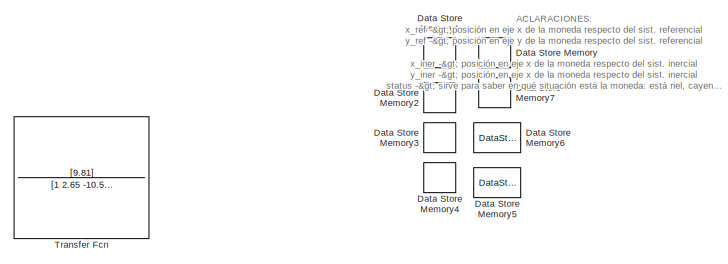
[diagram: root canvas - part 1/3, top center region]
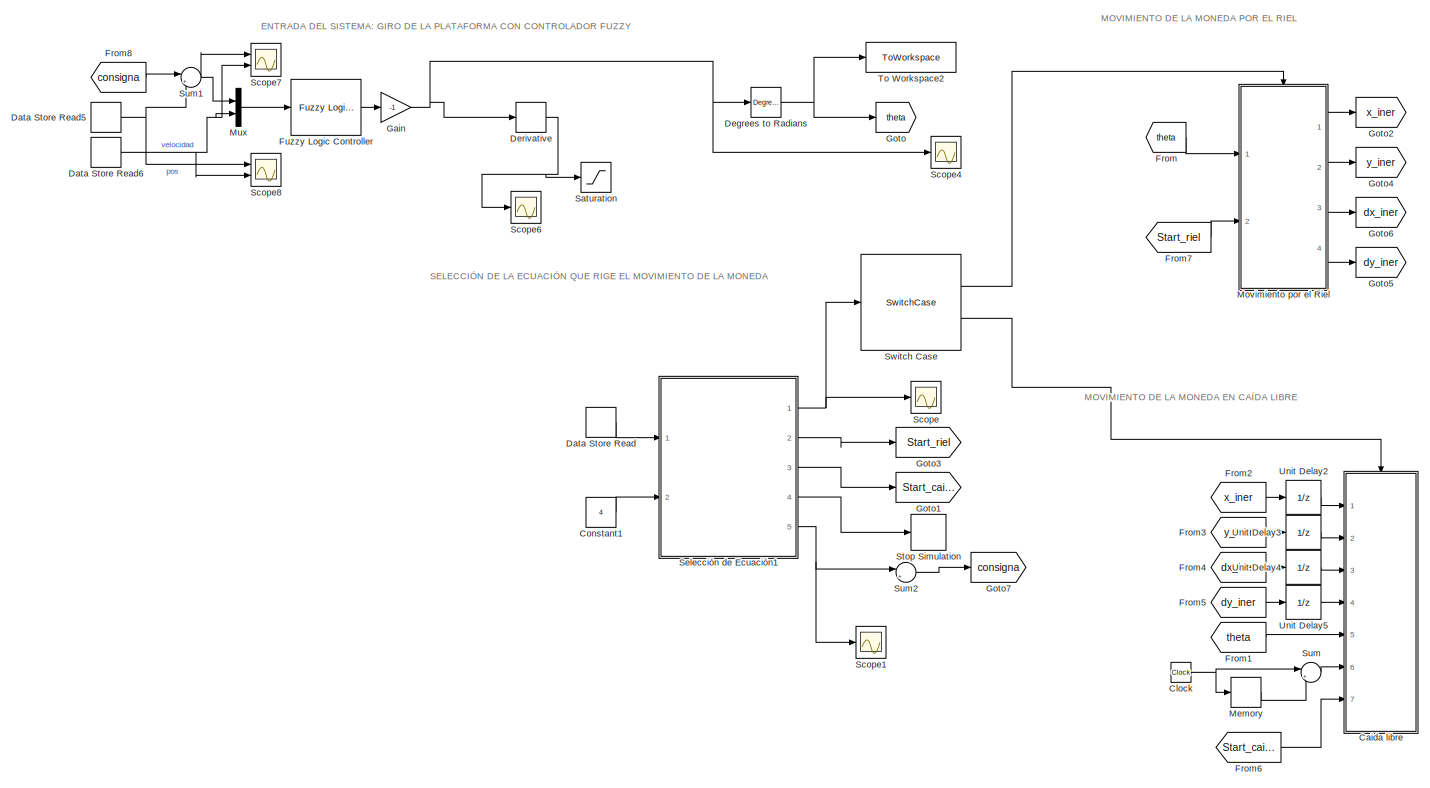
[diagram: root canvas - part 2/3, most of the canvas]
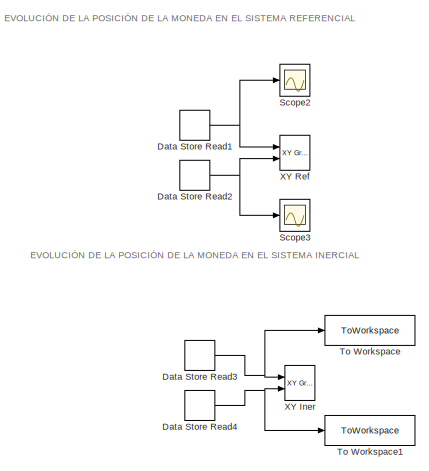
[diagram: root canvas - part 3/3, middle right region]
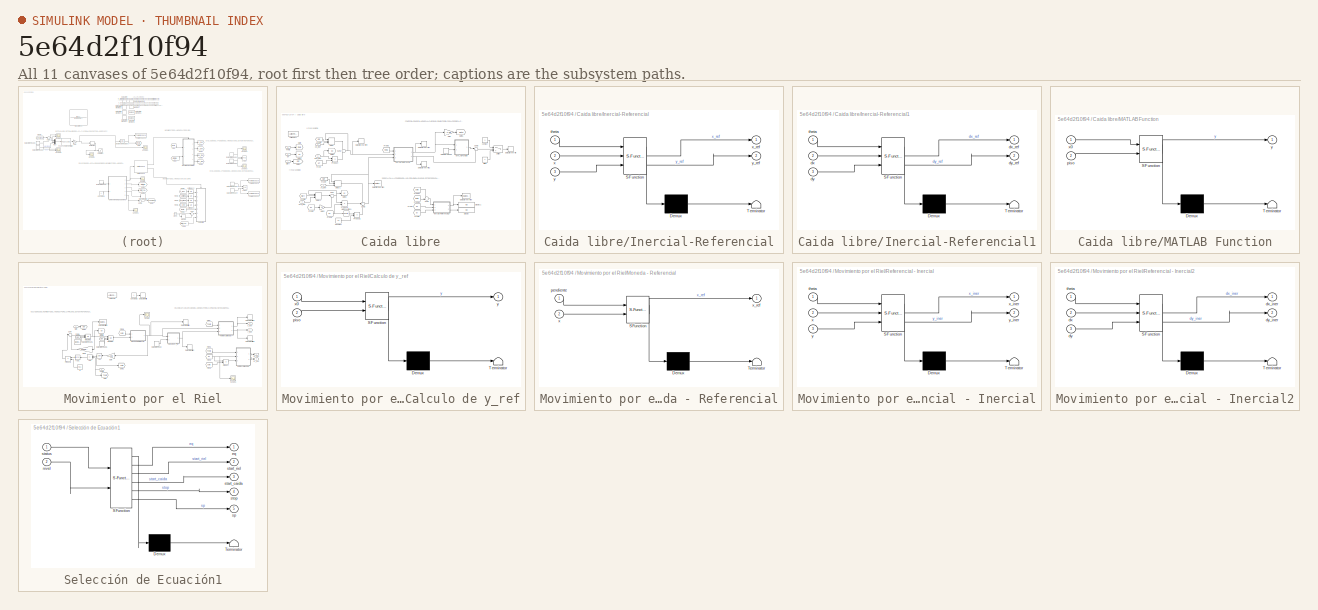
[diagram: thumbnail index - all 11 canvases of the model, root first then tree order]
MODEL slx_5e64d2f10f94
KIND model
CONFIG AbsTol = auto
CONFIG EnableMultiTasking = off
CONFIG FixedStep = 0.009
CONFIG MaxStep = auto
CONFIG MinStep = auto
CONFIG RelTol = 1e-3
CONFIG SampleTimeConstraint = Unconstrained
CONFIG SolverName = FixedStepAuto
CONFIG StartTime = 0.0
CONFIG StopTime = 20
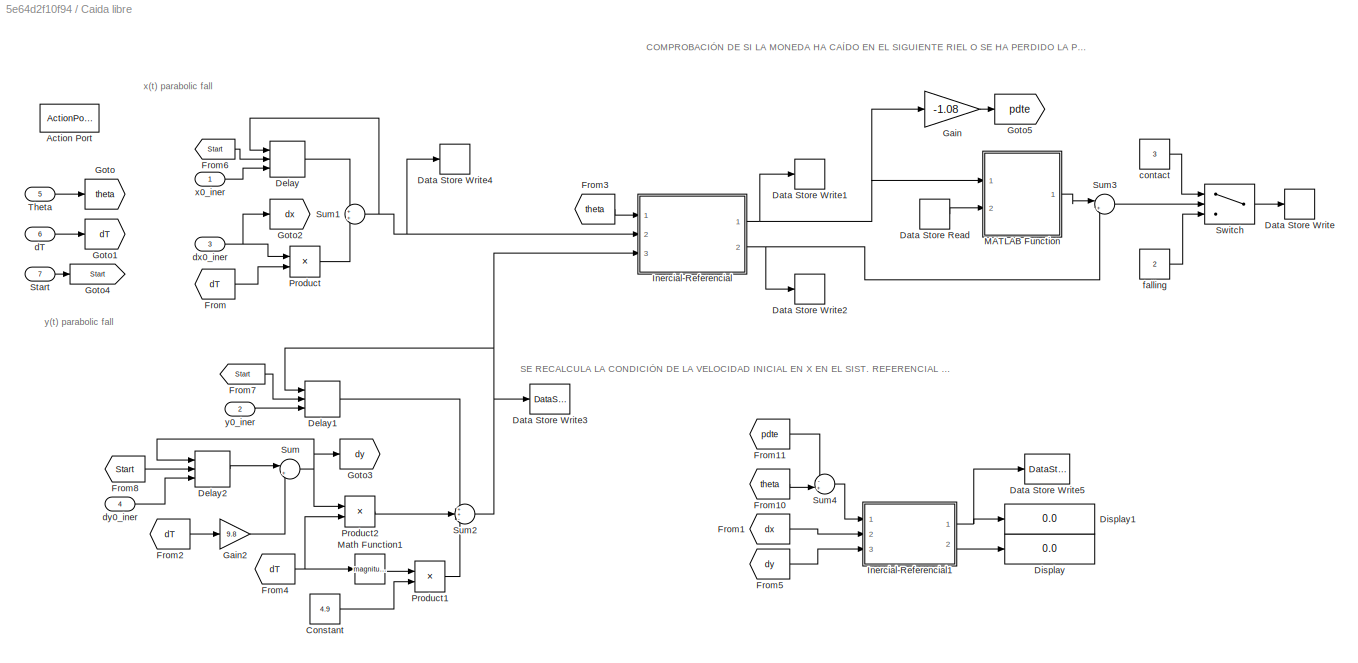
BLOCK [SubSystem] Caida libre
  Ports = [7, 0, 0, 0, 0, 0, 0, 1]
  RequestExecContextInheritance = off
  TreatAsAtomicUnit = on
BLOCK [ActionPort] Caida libre/Action Port
  ActionPortLabel = case [ 2 ]:
BLOCK [Constant] Caida libre/Constant
  Value = 4.9
BLOCK [DataStoreRead] Caida libre/Data Store Read
  DataStoreName = Piso
  Ports = [0, 1]
BLOCK [DataStoreWrite] Caida libre/Data Store Write
  DataStoreName = status
  Ports = [1]
BLOCK [DataStoreWrite] Caida libre/Data Store Write1
  DataStoreName = x_ref
  Ports = [1]
BLOCK [DataStoreWrite] Caida libre/Data Store Write2
  DataStoreName = y_ref
  Ports = [1]
BLOCK [DataStoreWrite] Caida libre/Data Store Write3
  DataStoreName = y_iner
  Ports = [1]
BLOCK [DataStoreWrite] Caida libre/Data Store Write4
  DataStoreName = x_iner
  Ports = [1]
BLOCK [DataStoreWrite] Caida libre/Data Store Write5
  DataStoreName = dx_mon
  Ports = [1]
BLOCK [Delay] Caida libre/Delay
  DelayLength = 1
  ExternalReset = Rising
  InitialConditionSource = Input port
  InputPortMap = u0,r5,p4
  Ports = [3, 1]
BLOCK [Delay] Caida libre/Delay1
  DelayLength = 1
  ExternalReset = Rising
  InitialConditionSource = Input port
  InputPortMap = u0,r5,p4
  Ports = [3, 1]
BLOCK [Delay] Caida libre/Delay2
  DelayLength = 1
  ExternalReset = Rising
  InitialConditionSource = Input port
  InputPortMap = u0,r5,p4
  Ports = [3, 1]
BLOCK [Display] Caida libre/Display
  Decimation = 1
  Ports = [1]
BLOCK [Display] Caida libre/Display1
  Decimation = 1
  Ports = [1]
BLOCK [From] Caida libre/From
  GotoTag = dT
BLOCK [From] Caida libre/From1
  GotoTag = dx
BLOCK [From] Caida libre/From10
  GotoTag = theta
BLOCK [From] Caida libre/From11
  GotoTag = pdte
BLOCK [From] Caida libre/From2
  GotoTag = dT
BLOCK [From] Caida libre/From3
  GotoTag = theta
BLOCK [From] Caida libre/From4
  GotoTag = dT
BLOCK [From] Caida libre/From5
  GotoTag = dy
BLOCK [From] Caida libre/From6
  GotoTag = Start
BLOCK [From] Caida libre/From7
  GotoTag = Start
BLOCK [From] Caida libre/From8
  GotoTag = Start
BLOCK [Gain] Caida libre/Gain
  Gain = -1.08
BLOCK [Gain] Caida libre/Gain2
  Gain = 9.8
BLOCK [Goto] Caida libre/Goto
  GotoTag = theta
BLOCK [Goto] Caida libre/Goto1
  GotoTag = dT
BLOCK [Goto] Caida libre/Goto2
  GotoTag = dx
BLOCK [Goto] Caida libre/Goto3
  GotoTag = dy
BLOCK [Goto] Caida libre/Goto4
  GotoTag = Start
BLOCK [Goto] Caida libre/Goto5
  GotoTag = pdte
BLOCK [SubSystem] Caida libre/Inercial-Referencial
  ErrorFcn = Stateflow.Translate.translate
  PermitHierarchicalResolution = ExplicitOnly
  Ports = [3, 2]
  RequestExecContextInheritance = off
  SFBlockType = MATLAB Function
  TreatAsAtomicUnit = on
BLOCK [Demux] Caida libre/Inercial-Referencial/ Demux 
  Outputs = 1
  Ports = [1, 1]
BLOCK [S-Function] Caida libre/Inercial-Referencial/ SFunction 
  EnableBusSupport = on
  FunctionName = sf_sfun
  PortCounts = [3 3]
  Ports = [3, 3]
  SFcnIsStateOwnerBlock = off
  SFunctionDeploymentMode = off
  Tag = Stateflow S-Function 3
BLOCK [Terminator] Caida libre/Inercial-Referencial/ Terminator 
BLOCK [Inport] Caida libre/Inercial-Referencial/theta
BLOCK [Inport] Caida libre/Inercial-Referencial/x
  Port = 2
BLOCK [Outport] Caida libre/Inercial-Referencial/x_ref
BLOCK [Inport] Caida libre/Inercial-Referencial/y
  Port = 3
BLOCK [Outport] Caida libre/Inercial-Referencial/y_ref
  Port = 2
BLOCK [SubSystem] Caida libre/Inercial-Referencial1
  ErrorFcn = Stateflow.Translate.translate
  PermitHierarchicalResolution = ExplicitOnly
  Ports = [3, 2]
  RequestExecContextInheritance = off
  SFBlockType = MATLAB Function
  TreatAsAtomicUnit = on
BLOCK [Demux] Caida libre/Inercial-Referencial1/ Demux 
  Outputs = 1
  Ports = [1, 1]
BLOCK [S-Function] Caida libre/Inercial-Referencial1/ SFunction 
  EnableBusSupport = on
  FunctionName = sf_sfun
  PortCounts = [3 3]
  Ports = [3, 3]
  SFcnIsStateOwnerBlock = off
  SFunctionDeploymentMode = off
  Tag = Stateflow S-Function 5
BLOCK [Terminator] Caida libre/Inercial-Referencial1/ Terminator 
BLOCK [Inport] Caida libre/Inercial-Referencial1/dx
  Port = 2
BLOCK [Outport] Caida libre/Inercial-Referencial1/dx_ref
BLOCK [Inport] Caida libre/Inercial-Referencial1/dy
  Port = 3
BLOCK [Outport] Caida libre/Inercial-Referencial1/dy_ref
  Port = 2
BLOCK [Inport] Caida libre/Inercial-Referencial1/theta
BLOCK [SubSystem] Caida libre/MATLAB Function
  ErrorFcn = Stateflow.Translate.translate
  PermitHierarchicalResolution = ExplicitOnly
  Ports = [2, 1]
  RequestExecContextInheritance = off
  SFBlockType = MATLAB Function
  TreatAsAtomicUnit = on
BLOCK [Demux] Caida libre/MATLAB Function/ Demux 
  Outputs = 1
  Ports = [1, 1]
BLOCK [S-Function] Caida libre/MATLAB Function/ SFunction 
  EnableBusSupport = on
  FunctionName = sf_sfun
  PortCounts = [2 2]
  Ports = [2, 2]
  SFcnIsStateOwnerBlock = off
  SFunctionDeploymentMode = off
  Tag = Stateflow S-Function 7
BLOCK [Terminator] Caida libre/MATLAB Function/ Terminator 
BLOCK [Inport] Caida libre/MATLAB Function/piso
  Port = 2
BLOCK [Inport] Caida libre/MATLAB Function/x0
BLOCK [Outport] Caida libre/MATLAB Function/y
BLOCK [Math] Caida libre/Math Function1
  Operator = magnitude^2
  Ports = [1, 1]
BLOCK [Product] Caida libre/Product
  Ports = [2, 1]
BLOCK [Product] Caida libre/Product1
  Ports = [2, 1]
BLOCK [Product] Caida libre/Product2
  Ports = [2, 1]
BLOCK [Inport] Caida libre/Start
  Port = 7
BLOCK [Sum] Caida libre/Sum
  Inputs = |+-
  Ports = [2, 1]
BLOCK [Sum] Caida libre/Sum1
  Ports = [2, 1]
BLOCK [Sum] Caida libre/Sum2
  Inputs = ++-
  Ports = [3, 1]
BLOCK [Sum] Caida libre/Sum3
  Inputs = |+-
  Ports = [2, 1]
BLOCK [Sum] Caida libre/Sum4
  Inputs = -+|
  Ports = [2, 1]
BLOCK [Switch] Caida libre/Switch
  Criteria = u2 > Threshold
  InputSameDT = off
  SaturateOnIntegerOverflow = off
BLOCK [Inport] Caida libre/Theta
  Port = 5
BLOCK [Constant] Caida libre/contact
  Value = 3
BLOCK [Inport] Caida libre/dT
  Port = 6
BLOCK [Inport] Caida libre/dx0_iner
  Port = 3
BLOCK [Inport] Caida libre/dy0_iner
  Port = 4
BLOCK [Constant] Caida libre/falling
  Value = 2
BLOCK [Inport] Caida libre/x0_iner
BLOCK [Inport] Caida libre/y0_iner
  Port = 2
BLOCK [Clock] Clock
BLOCK [Constant] Constant1
  Value = 4
BLOCK [DataStoreMemory] Data Store Memory
  DataStoreName = status
  OutDataTypeStr = double
  ReadBeforeWriteMsg = warning
  ShowAdditionalParam = off
  SignalType = real
  WriteAfterReadMsg = warning
  WriteAfterWriteMsg = warning
BLOCK [DataStoreMemory] Data Store Memory1
  DataStoreName = x_ref
  InitialValue = -0.11
  OutDataTypeStr = double
  ReadBeforeWriteMsg = warning
  ShowAdditionalParam = off
  SignalType = real
  WriteAfterReadMsg = warning
  WriteAfterWriteMsg = warning
BLOCK [DataStoreMemory] Data Store Memory2
  DataStoreName = y_ref
  OutDataTypeStr = double
  ReadBeforeWriteMsg = warning
  ShowAdditionalParam = off
  SignalType = real
  WriteAfterReadMsg = warning
  WriteAfterWriteMsg = warning
BLOCK [DataStoreMemory] Data Store Memory3
  DataStoreName = x_iner
  InitialValue = -0.11
  OutDataTypeStr = double
  ReadBeforeWriteMsg = warning
  ShowAdditionalParam = off
  SignalType = real
  WriteAfterReadMsg = warning
  WriteAfterWriteMsg = warning
BLOCK [DataStoreMemory] Data Store Memory4
  DataStoreName = y_iner
  OutDataTypeStr = double
  ReadBeforeWriteMsg = warning
  ShowAdditionalParam = off
  SignalType = real
  WriteAfterReadMsg = warning
  WriteAfterWriteMsg = warning
BLOCK [DataStoreMemory] Data Store Memory5
  DataStoreName = dx_mon
  OutDataTypeStr = double
  ReadBeforeWriteMsg = warning
  ShowAdditionalParam = off
  SignalType = real
  WriteAfterReadMsg = warning
  WriteAfterWriteMsg = warning
BLOCK [DataStoreMemory] Data Store Memory6
  DataStoreName = dy_ref
  OutDataTypeStr = double
  ReadBeforeWriteMsg = warning
  ShowAdditionalParam = off
  SignalType = real
  WriteAfterReadMsg = warning
  WriteAfterWriteMsg = warning
BLOCK [DataStoreMemory] Data Store Memory7
  DataStoreName = Piso
  InitialValue = 1
  OutDataTypeStr = double
  ReadBeforeWriteMsg = warning
  ShowAdditionalParam = off
  SignalType = real
  WriteAfterReadMsg = warning
  WriteAfterWriteMsg = warning
BLOCK [DataStoreRead] Data Store Read
  DataStoreName = status
  Ports = [0, 1]
BLOCK [DataStoreRead] Data Store Read1
  DataStoreName = x_ref
  Ports = [0, 1]
BLOCK [DataStoreRead] Data Store Read2
  DataStoreName = y_ref
  Ports = [0, 1]
BLOCK [DataStoreRead] Data Store Read3
  DataStoreName = x_iner
  Ports = [0, 1]
BLOCK [DataStoreRead] Data Store Read4
  DataStoreName = y_iner
  Ports = [0, 1]
BLOCK [DataStoreRead] Data Store Read5
  DataStoreName = x_ref
  Ports = [0, 1]
BLOCK [DataStoreRead] Data Store Read6
  DataStoreName = dx_mon
  Ports = [0, 1]
BLOCK [Reference] Degrees to Radians  REF=simulink_extras/Transformations/Degrees to
Radians
  Ports = [1, 1]
  SourceBlock = simulink_extras/Transformations/Degrees to\nRadians
  SourceProductBaseCode = SL
  SourceType = DegreesToRadians
BLOCK [Derivative] Derivative
BLOCK [From] From
  GotoTag = theta
BLOCK [From] From1
  GotoTag = theta
BLOCK [From] From2
  GotoTag = x_iner
BLOCK [From] From3
  GotoTag = y_iner
BLOCK [From] From4
  GotoTag = dx_iner
BLOCK [From] From5
  GotoTag = dy_iner
BLOCK [From] From6
  GotoTag = Start_caida
BLOCK [From] From7
  GotoTag = Start_riel
BLOCK [From] From8
  GotoTag = consigna
BLOCK [Reference] Fuzzy Logic Controller  REF=fuzblock/Fuzzy Logic   (lib defined in mdl_858b3b3e7478)
Controller
  Ports = [1, 1]
  SourceBlock = fuzblock/Fuzzy Logic \nController
  SourceProductBaseCode = FL
  SourceType = Fuzzy Inference System
BLOCK [Gain] Gain
  Gain = -1
BLOCK [Goto] Goto
  GotoTag = theta
BLOCK [Goto] Goto1
  GotoTag = Start_caida
BLOCK [Goto] Goto2
  GotoTag = x_iner
BLOCK [Goto] Goto3
  GotoTag = Start_riel
BLOCK [Goto] Goto4
  GotoTag = y_iner
BLOCK [Goto] Goto5
  GotoTag = dy_iner
BLOCK [Goto] Goto6
  GotoTag = dx_iner
BLOCK [Goto] Goto7
  GotoTag = consigna
BLOCK [Memory] Memory
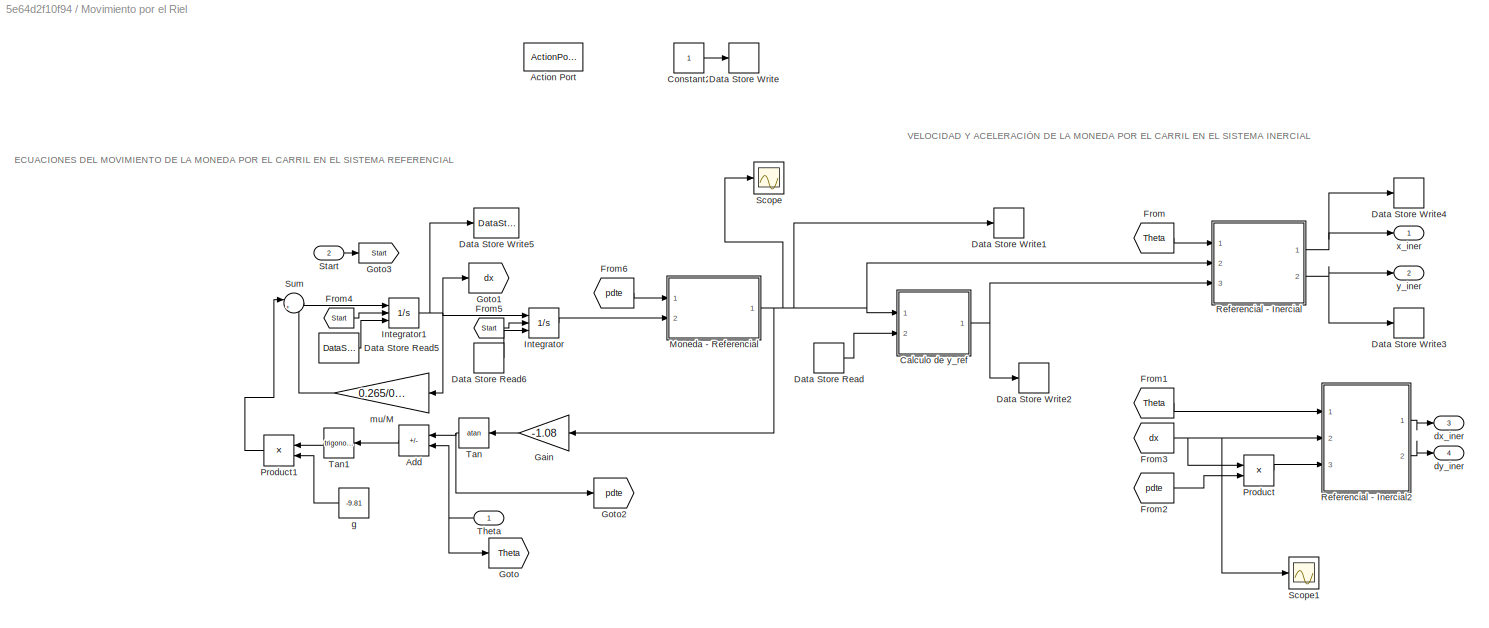
BLOCK [SubSystem] Movimiento por el Riel
  Ports = [2, 4, 0, 0, 0, 0, 0, 1]
  RequestExecContextInheritance = off
  TreatAsAtomicUnit = on
BLOCK [ActionPort] Movimiento por el Riel/Action Port
  ActionPortLabel = case [ 1 ]:
BLOCK [Sum] Movimiento por el Riel/Add
  IconShape = rectangular
  Inputs = +-
  NameLocation = top
  Ports = [2, 1]
BLOCK [SubSystem] Movimiento por el Riel/Calculo de y_ref
  ErrorFcn = Stateflow.Translate.translate
  PermitHierarchicalResolution = ExplicitOnly
  Ports = [2, 1]
  RequestExecContextInheritance = off
  SFBlockType = MATLAB Function
  TreatAsAtomicUnit = on
BLOCK [Demux] Movimiento por el Riel/Calculo de y_ref/ Demux 
  Outputs = 1
  Ports = [1, 1]
BLOCK [S-Function] Movimiento por el Riel/Calculo de y_ref/ SFunction 
  EnableBusSupport = on
  FunctionName = sf_sfun
  PortCounts = [2 2]
  Ports = [2, 2]
  SFcnIsStateOwnerBlock = off
  SFunctionDeploymentMode = off
  Tag = Stateflow S-Function 2
BLOCK [Terminator] Movimiento por el Riel/Calculo de y_ref/ Terminator 
BLOCK [Inport] Movimiento por el Riel/Calculo de y_ref/piso
  Port = 2
BLOCK [Inport] Movimiento por el Riel/Calculo de y_ref/x0
BLOCK [Outport] Movimiento por el Riel/Calculo de y_ref/y
BLOCK [Constant] Movimiento por el Riel/Constant2
BLOCK [DataStoreRead] Movimiento por el Riel/Data Store Read
  DataStoreName = Piso
  Ports = [0, 1]
BLOCK [DataStoreRead] Movimiento por el Riel/Data Store Read5
  DataStoreName = dx_mon
  Ports = [0, 1]
BLOCK [DataStoreRead] Movimiento por el Riel/Data Store Read6
  DataStoreName = x_ref
  Ports = [0, 1]
BLOCK [DataStoreWrite] Movimiento por el Riel/Data Store Write
  DataStoreName = status
  Ports = [1]
BLOCK [DataStoreWrite] Movimiento por el Riel/Data Store Write1
  DataStoreName = x_ref
  Ports = [1]
BLOCK [DataStoreWrite] Movimiento por el Riel/Data Store Write2
  DataStoreName = y_ref
  Ports = [1]
BLOCK [DataStoreWrite] Movimiento por el Riel/Data Store Write3
  DataStoreName = y_iner
  Ports = [1]
BLOCK [DataStoreWrite] Movimiento por el Riel/Data Store Write4
  DataStoreName = x_iner
  Ports = [1]
BLOCK [DataStoreWrite] Movimiento por el Riel/Data Store Write5
  DataStoreName = dx_mon
  Ports = [1]
BLOCK [From] Movimiento por el Riel/From
  GotoTag = Theta
BLOCK [From] Movimiento por el Riel/From1
  GotoTag = Theta
BLOCK [From] Movimiento por el Riel/From2
  GotoTag = pdte
BLOCK [From] Movimiento por el Riel/From3
  GotoTag = dx
BLOCK [From] Movimiento por el Riel/From4
  GotoTag = Start
BLOCK [From] Movimiento por el Riel/From5
  GotoTag = Start
BLOCK [From] Movimiento por el Riel/From6
  GotoTag = pdte
BLOCK [Gain] Movimiento por el Riel/Gain
  Gain = -1.08
  NameLocation = top
BLOCK [Goto] Movimiento por el Riel/Goto
  GotoTag = Theta
BLOCK [Goto] Movimiento por el Riel/Goto1
  GotoTag = dx
BLOCK [Goto] Movimiento por el Riel/Goto2
  GotoTag = pdte
BLOCK [Goto] Movimiento por el Riel/Goto3
  GotoTag = Start
BLOCK [Integrator] Movimiento por el Riel/Integrator
  ExternalReset = rising
  InitialConditionSource = external
  Ports = [3, 1]
BLOCK [Integrator] Movimiento por el Riel/Integrator1
  ExternalReset = rising
  InitialConditionSource = external
  Ports = [3, 1]
BLOCK [SubSystem] Movimiento por el Riel/Moneda - Referencial
  ErrorFcn = Stateflow.Translate.translate
  PermitHierarchicalResolution = ExplicitOnly
  Ports = [2, 1]
  RequestExecContextInheritance = off
  SFBlockType = MATLAB Function
  TreatAsAtomicUnit = on
BLOCK [Demux] Movimiento por el Riel/Moneda - Referencial/ Demux 
  Outputs = 1
  Ports = [1, 1]
BLOCK [S-Function] Movimiento por el Riel/Moneda - Referencial/ SFunction 
  EnableBusSupport = on
  FunctionName = sf_sfun
  PortCounts = [2 2]
  Ports = [2, 2]
  SFcnIsStateOwnerBlock = off
  SFunctionDeploymentMode = off
  Tag = Stateflow S-Function 1
BLOCK [Terminator] Movimiento por el Riel/Moneda - Referencial/ Terminator 
BLOCK [Inport] Movimiento por el Riel/Moneda - Referencial/pendiente
BLOCK [Inport] Movimiento por el Riel/Moneda - Referencial/x
  Port = 2
BLOCK [Outport] Movimiento por el Riel/Moneda - Referencial/x_ref
BLOCK [Product] Movimiento por el Riel/Product
  Ports = [2, 1]
BLOCK [Product] Movimiento por el Riel/Product1
  NameLocation = top
  Ports = [2, 1]
BLOCK [SubSystem] Movimiento por el Riel/Referencial - Inercial
  ErrorFcn = Stateflow.Translate.translate
  PermitHierarchicalResolution = ExplicitOnly
  Ports = [3, 2]
  RequestExecContextInheritance = off
  SFBlockType = MATLAB Function
  TreatAsAtomicUnit = on
BLOCK [Demux] Movimiento por el Riel/Referencial - Inercial/ Demux 
  Outputs = 1
  Ports = [1, 1]
BLOCK [S-Function] Movimiento por el Riel/Referencial - Inercial/ SFunction 
  EnableBusSupport = on
  FunctionName = sf_sfun
  PortCounts = [3 3]
  Ports = [3, 3]
  SFcnIsStateOwnerBlock = off
  SFunctionDeploymentMode = off
  Tag = Stateflow S-Function 8
BLOCK [Terminator] Movimiento por el Riel/Referencial - Inercial/ Terminator 
BLOCK [Inport] Movimiento por el Riel/Referencial - Inercial/theta
BLOCK [Inport] Movimiento por el Riel/Referencial - Inercial/x
  Port = 2
BLOCK [Outport] Movimiento por el Riel/Referencial - Inercial/x_iner
BLOCK [Inport] Movimiento por el Riel/Referencial - Inercial/y
  Port = 3
BLOCK [Outport] Movimiento por el Riel/Referencial - Inercial/y_iner
  Port = 2
BLOCK [SubSystem] Movimiento por el Riel/Referencial - Inercial2
  ErrorFcn = Stateflow.Translate.translate
  PermitHierarchicalResolution = ExplicitOnly
  Ports = [3, 2]
  RequestExecContextInheritance = off
  SFBlockType = MATLAB Function
  TreatAsAtomicUnit = on
BLOCK [Demux] Movimiento por el Riel/Referencial - Inercial2/ Demux 
  Outputs = 1
  Ports = [1, 1]
BLOCK [S-Function] Movimiento por el Riel/Referencial - Inercial2/ SFunction 
  EnableBusSupport = on
  FunctionName = sf_sfun
  PortCounts = [3 3]
  Ports = [3, 3]
  SFcnIsStateOwnerBlock = off
  SFunctionDeploymentMode = off
  Tag = Stateflow S-Function 9
BLOCK [Terminator] Movimiento por el Riel/Referencial - Inercial2/ Terminator 
BLOCK [Inport] Movimiento por el Riel/Referencial - Inercial2/dx
  Port = 2
BLOCK [Outport] Movimiento por el Riel/Referencial - Inercial2/dx_iner
BLOCK [Inport] Movimiento por el Riel/Referencial - Inercial2/dy
  Port = 3
BLOCK [Outport] Movimiento por el Riel/Referencial - Inercial2/dy_iner
  Port = 2
BLOCK [Inport] Movimiento por el Riel/Referencial - Inercial2/theta
BLOCK [Scope] Movimiento por el Riel/Scope
  Floating = off
  NumInputPorts = 1
  Ports = [1]
  ScopeSpecificationString = Simulink.scopes.TimeScopeBlockCfg('CurrentConfiguration', extmgr.ConfigurationSet(extmgr.Configuration('Core','General UI',true),extmgr.Configuration('Core','Source UI',true),extmgr.Configuration('Sources','WiredSimulink',true,'DataLoggingVariableName','ScopeData1'),extmgr.Configuration('Visuals','Time Domain',true),extmgr.Configuration('Tools','Plot Navigation',true),extmgr.Configuration('Tools',...<+40ch>
BLOCK [Scope] Movimiento por el Riel/Scope1
  Floating = off
  NumInputPorts = 1
  Ports = [1]
  ScopeSpecificationString = Simulink.scopes.TimeScopeBlockCfg('CurrentConfiguration', extmgr.ConfigurationSet(extmgr.Configuration('Core','General UI',true),extmgr.Configuration('Core','Source UI',true),extmgr.Configuration('Sources','WiredSimulink',true,'DataLoggingVariableName','ScopeData1'),extmgr.Configuration('Visuals','Time Domain',true,'SerializedDisplays',{struct('MinYLimReal','-0.40852','MaxYLimReal','0.41258','YLab...<+1401ch>
BLOCK [Inport] Movimiento por el Riel/Start
  Port = 2
BLOCK [Sum] Movimiento por el Riel/Sum
  Inputs = |+-
  Ports = [2, 1]
BLOCK [Trigonometry] Movimiento por el Riel/Tan
  NameLocation = top
  Operator = atan
  Ports = [1, 1]
BLOCK [Trigonometry] Movimiento por el Riel/Tan1
  NameLocation = top
  Ports = [1, 1]
BLOCK [Inport] Movimiento por el Riel/Theta
  NameLocation = top
BLOCK [Outport] Movimiento por el Riel/dx_iner
  Port = 3
BLOCK [Outport] Movimiento por el Riel/dy_iner
  Port = 4
BLOCK [Constant] Movimiento por el Riel/g
  NameLocation = top
  Value = -9.81
BLOCK [Gain] Movimiento por el Riel/mu//M
  Gain = 0.265/0.1
BLOCK [Outport] Movimiento por el Riel/x_iner
BLOCK [Outport] Movimiento por el Riel/y_iner
  Port = 2
BLOCK [Mux] Mux
  DisplayOption = bar
  Inputs = 2
  Ports = [2, 1]
BLOCK [Saturate] Saturation
  LowerLimit = -300
  UpperLimit = 300
BLOCK [Scope] Scope
  Floating = off
  NumInputPorts = 1
  Ports = [1]
  ScopeSpecificationString = Simulink.scopes.TimeScopeBlockCfg('CurrentConfiguration', extmgr.ConfigurationSet(extmgr.Configuration('Core','General UI',true),extmgr.Configuration('Core','Source UI',true),extmgr.Configuration('Sources','WiredSimulink',true,'DataLoggingVariableName','ScopeData1'),extmgr.Configuration('Visuals','Time Domain',true,'SerializedDisplays',{struct('MinYLimReal','0.875','MaxYLimReal','2.125','YLabelRea...<+1463ch>
BLOCK [Scope] Scope1
  Floating = off
  NumInputPorts = 1
  Ports = [1]
  ScopeSpecificationString = Simulink.scopes.TimeScopeBlockCfg('CurrentConfiguration', extmgr.ConfigurationSet(extmgr.Configuration('Core','General UI',true),extmgr.Configuration('Core','Source UI',true),extmgr.Configuration('Sources','WiredSimulink',true,'DataLoggingVariableName','ScopeData1'),extmgr.Configuration('Visuals','Time Domain',true,'SerializedDisplays',{struct('MinYLimReal','-0.17858','MaxYLimReal','0.16439','YLab...<+1799ch>
BLOCK [Scope] Scope2
  Floating = off
  NumInputPorts = 1
  Ports = [1]
  ScopeSpecificationString = Simulink.scopes.TimeScopeBlockCfg('CurrentConfiguration', extmgr.ConfigurationSet(extmgr.Configuration('Core','General UI',true),extmgr.Configuration('Core','Source UI',true),extmgr.Configuration('Sources','WiredSimulink',true,'DataLoggingVariableName','ScopeData2'),extmgr.Configuration('Visuals','Time Domain',true,'SerializedDisplays',{struct('MinYLimReal','-0.14806','MaxYLimReal','0.24019','YLab...<+1790ch>
BLOCK [Scope] Scope3
  Floating = off
  NumInputPorts = 1
  Ports = [1]
  ScopeSpecificationString = Simulink.scopes.TimeScopeBlockCfg('CurrentConfiguration', extmgr.ConfigurationSet(extmgr.Configuration('Core','General UI',true),extmgr.Configuration('Core','Source UI',true),extmgr.Configuration('Sources','WiredSimulink',true,'DataLoggingVariableName','ScopeData1'),extmgr.Configuration('Visuals','Time Domain',true,'SerializedDisplays',{struct('MinYLimReal','0.03825','MaxYLimReal','0.12275','YLabe...<+1400ch>
BLOCK [Scope] Scope4
  Floating = off
  NumInputPorts = 1
  Ports = [1]
  ScopeSpecificationString = Simulink.scopes.TimeScopeBlockCfg('CurrentConfiguration', extmgr.ConfigurationSet(extmgr.Configuration('Core','General UI',true),extmgr.Configuration('Core','Source UI',true),extmgr.Configuration('Sources','WiredSimulink',true,'DataLoggingVariableName','ScopeData2'),extmgr.Configuration('Visuals','Time Domain',true,'SerializedDisplays',{struct('MinYLimReal','-29.29671','MaxYLimReal','31.55983','YL...<+1742ch>
BLOCK [Scope] Scope6
  Floating = off
  NumInputPorts = 1
  Ports = [1]
  ScopeSpecificationString = Simulink.scopes.TimeScopeBlockCfg('CurrentConfiguration', extmgr.ConfigurationSet(extmgr.Configuration('Core','General UI',true),extmgr.Configuration('Core','Source UI',true),extmgr.Configuration('Sources','WiredSimulink',true,'DataLoggingVariableName','ScopeData3'),extmgr.Configuration('Visuals','Time Domain',true,'SerializedDisplays',{struct('MinYLimReal','-2187.03291','MaxYLimReal','2089.06408'...<+1758ch>
BLOCK [Scope] Scope7
  Floating = off
  NumInputPorts = 2
  Ports = [2]
  ScopeSpecificationString = Simulink.scopes.TimeScopeBlockCfg('CurrentConfiguration', extmgr.ConfigurationSet(extmgr.Configuration('Core','General UI',true),extmgr.Configuration('Core','Source UI',true),extmgr.Configuration('Sources','WiredSimulink',true,'DataLoggingVariableName','ScopeData5'),extmgr.Configuration('Visuals','Time Domain',true,'SerializedDisplays',{struct('MinYLimReal','-0.40834','MaxYLimReal','0.41245','YLab...<+1751ch>
BLOCK [Scope] Scope8
  Floating = off
  NumInputPorts = 2
  Ports = [2]
  ScopeSpecificationString = Simulink.scopes.TimeScopeBlockCfg('CurrentConfiguration', extmgr.ConfigurationSet(extmgr.Configuration('Core','General UI',true),extmgr.Configuration('Core','Source UI',true),extmgr.Configuration('Sources','WiredSimulink',true,'DataLoggingVariableName','ScopeData6'),extmgr.Configuration('Visuals','Time Domain',true,'SerializedDisplays',{struct('MinYLimReal','-0.33817','MaxYLimReal','0.00778','YLab...<+1770ch>
BLOCK [SubSystem] Selección de Ecuación1
  ErrorFcn = Stateflow.Translate.translate
  PermitHierarchicalResolution = ExplicitOnly
  Ports = [2, 5]
  RequestExecContextInheritance = off
  SFBlockType = MATLAB Function
  TreatAsAtomicUnit = on
BLOCK [Demux] Selección de Ecuación1/ Demux 
  Outputs = 1
  Ports = [1, 1]
BLOCK [S-Function] Selección de Ecuación1/ SFunction 
  EnableBusSupport = on
  FunctionName = sf_sfun
  PortCounts = [2 6]
  Ports = [2, 6]
  SFcnIsStateOwnerBlock = off
  SFunctionDeploymentMode = off
  Tag = Stateflow S-Function 6
BLOCK [Terminator] Selección de Ecuación1/ Terminator 
BLOCK [Outport] Selección de Ecuación1/eq
BLOCK [Inport] Selección de Ecuación1/nivel
  Port = 2
BLOCK [Outport] Selección de Ecuación1/sp
  Port = 5
BLOCK [Outport] Selección de Ecuación1/start_caida
  Port = 3
BLOCK [Outport] Selección de Ecuación1/start_riel
  Port = 2
BLOCK [Inport] Selección de Ecuación1/status
BLOCK [Outport] Selección de Ecuación1/stop
  Port = 4
BLOCK [Stop] Stop Simulation
BLOCK [Sum] Sum
  Inputs = |+-
  Ports = [2, 1]
BLOCK [Sum] Sum1
  Inputs = |+-
  Ports = [2, 1]
BLOCK [Sum] Sum2
  Inputs = |++
  Ports = [2, 1]
BLOCK [SwitchCase] Switch Case
  CaseConditions = {1,2}
  Ports = [1, 2]
  ShowDefaultCase = off
BLOCK [ToWorkspace] To Workspace
  FixptAsFi = on
  MaxDataPoints = inf
  Ports = [1]
  SampleTime = -1
  VariableName = xs
BLOCK [ToWorkspace] To Workspace1
  FixptAsFi = on
  MaxDataPoints = inf
  Ports = [1]
  SampleTime = -1
  VariableName = ys
BLOCK [ToWorkspace] To Workspace2
  FixptAsFi = on
  MaxDataPoints = inf
  Ports = [1]
  SampleTime = -1
  VariableName = giro_m
BLOCK [TransferFcn] Transfer Fcn
  Denominator = [1 2.65 -10.59]
  Numerator = [9.81]
BLOCK [UnitDelay] Unit Delay2
  HasFrameUpgradeWarning = on
  SampleTime = -1
BLOCK [UnitDelay] Unit Delay3
  HasFrameUpgradeWarning = on
  SampleTime = -1
BLOCK [UnitDelay] Unit Delay4
  HasFrameUpgradeWarning = on
  SampleTime = -1
BLOCK [UnitDelay] Unit Delay5
  HasFrameUpgradeWarning = on
  SampleTime = -1
BLOCK [Reference] XY Iner  REF=simulink/Sinks/XY Graph
  Ports = [2]
  SourceBlock = simulink/Sinks/XY Graph
  SourceProductBaseCode = SL
  SourceType = XY scope.
BLOCK [Reference] XY Ref  REF=simulink/Sinks/XY Graph
  Ports = [2]
  SourceBlock = simulink/Sinks/XY Graph
  SourceProductBaseCode = SL
  SourceType = XY scope.
ANNOTATION (root): ACLARACIONES : x_ref -> posición en eje x de la moneda respecto del sist. referencial y_ref -> posición en eje y de la moneda respecto del sist. referencial x_iner -> posición en eje x de la moneda respecto del sist. inercial y_iner -> posición en eje x de la moneda respecto del sist. inercial status -> sirve para saber en qué situación está la moneda: está riel, cayendo o chocando. dx_mon -> velo...<+200ch>
ANNOTATION (root): ENTRADA DEL SISTEMA: GIRO DE LA PLATAFORMA CON CONTROLADOR FUZZY
ANNOTATION (root): EVOLUCIÓN DE LA POSICIÓN DE LA MONEDA EN EL SISTEMA INERCIAL
ANNOTATION (root): EVOLUCIÓN DE LA POSICIÓN DE LA MONEDA EN EL SISTEMA REFERENCIAL
ANNOTATION (root): MOVIMIENTO DE LA MONEDA EN CAÍDA LIBRE
ANNOTATION (root): MOVIMIENTO DE LA MONEDA POR EL RIEL
ANNOTATION (root): SELECCIÓN DE LA ECUACIÓN QUE RIGE EL MOVIMIENTO DE LA MONEDA
ANNOTATION Caida libre: SE RECALCULA LA CONDICIÓN DE LA VELOCIDAD INICIAL EN X EN EL SIST. REFERENCIAL CON LA QUE LA MONEDA PASA AL SIGUIENTE RIEL
ANNOTATION Caida libre: COMPROBACIÓN DE SI LA MONEDA HA CAÍDO EN EL SIGUIENTE RIEL O SE HA PERDIDO LA PARTIDA
ANNOTATION Caida libre: x(t) parabolic fall
ANNOTATION Caida libre: y(t) parabolic fall
ANNOTATION Movimiento por el Riel: ECUACIONES DEL MOVIMIENTO DE LA MONEDA POR EL CARRIL EN EL SISTEMA REFERENCIAL
ANNOTATION Movimiento por el Riel: VELOCIDAD Y ACELERACIÓN DE LA MONEDA POR EL CARRIL EN EL SISTEMA INERCIAL
LINE Caida libre/Constant:1 -> Caida libre/Product1:2
LINE Caida libre/Data Store Read:1 -> Caida libre/MATLAB Function:2
LINE Caida libre/Delay1:1 -> Caida libre/Sum2:1
LINE Caida libre/Delay2:1 -> Caida libre/Sum:1
LINE Caida libre/Delay:1 -> Caida libre/Sum1:1
LINE Caida libre/From10:1 -> Caida libre/Sum4:2
LINE Caida libre/From11:1 -> Caida libre/Sum4:1
LINE Caida libre/From1:1 -> Caida libre/Inercial-Referencial1:2
LINE Caida libre/From2:1 -> Caida libre/Gain2:1
LINE Caida libre/From3:1 -> Caida libre/Inercial-Referencial:1
NET Caida libre/From4:1 -> Caida libre/Math Function1:1, Caida libre/Product2:2
LINE Caida libre/From5:1 -> Caida libre/Inercial-Referencial1:3
LINE Caida libre/From6:1 -> Caida libre/Delay:2
LINE Caida libre/From7:1 -> Caida libre/Delay1:2
LINE Caida libre/From8:1 -> Caida libre/Delay2:2
LINE Caida libre/From:1 -> Caida libre/Product:2
LINE Caida libre/Gain2:1 -> Caida libre/Sum:2
LINE Caida libre/Gain:1 -> Caida libre/Goto5:1
NET Caida libre/Inercial-Referencial1:1 -> Caida libre/Data Store Write5:1, Caida libre/Display1:1
LINE Caida libre/Inercial-Referencial1:2 -> Caida libre/Display:1
NET Caida libre/Inercial-Referencial:1 -> Caida libre/Data Store Write1:1, Caida libre/Gain:1, Caida libre/MATLAB Function:1
NET Caida libre/Inercial-Referencial:2 -> Caida libre/Data Store Write2:1, Caida libre/Sum3:2
LINE Caida libre/MATLAB Function:1 -> Caida libre/Sum3:1
LINE Caida libre/Math Function1:1 -> Caida libre/Product1:1
LINE Caida libre/Product1:1 -> Caida libre/Sum2:3
LINE Caida libre/Product2:1 -> Caida libre/Sum2:2
LINE Caida libre/Product:1 -> Caida libre/Sum1:2
LINE Caida libre/Start:1 -> Caida libre/Goto4:1
NET Caida libre/Sum1:1 -> Caida libre/Data Store Write4:1, Caida libre/Delay:1, Caida libre/Inercial-Referencial:2
NET Caida libre/Sum2:1 -> Caida libre/Data Store Write3:1, Caida libre/Delay1:1, Caida libre/Inercial-Referencial:3
LINE Caida libre/Sum3:1 -> Caida libre/Switch:2
LINE Caida libre/Sum4:1 -> Caida libre/Inercial-Referencial1:1
NET Caida libre/Sum:1 -> Caida libre/Delay2:1, Caida libre/Goto3:1, Caida libre/Product2:1
LINE Caida libre/Switch:1 -> Caida libre/Data Store Write:1
LINE Caida libre/Theta:1 -> Caida libre/Goto:1
LINE Caida libre/contact:1 -> Caida libre/Switch:1
LINE Caida libre/dT:1 -> Caida libre/Goto1:1
NET Caida libre/dx0_iner:1 -> Caida libre/Goto2:1, Caida libre/Product:1
LINE Caida libre/dy0_iner:1 -> Caida libre/Delay2:3
LINE Caida libre/falling:1 -> Caida libre/Switch:3
LINE Caida libre/x0_iner:1 -> Caida libre/Delay:3
LINE Caida libre/y0_iner:1 -> Caida libre/Delay1:3
NET Clock:1 -> Memory:1, Sum:1
LINE Constant1:1 -> Selección de Ecuación1:2
NET Data Store Read1:1 -> Scope2:1, XY Ref:1
NET Data Store Read2:1 -> Scope3:1, XY Ref:2
NET Data Store Read3:1 -> To Workspace:1, XY Iner:1
NET Data Store Read4:1 -> To Workspace1:1, XY Iner:2
NET Data Store Read5:1 -> Scope8:1, Sum1:2
NET Data Store Read6:1 -> Mux:2, Scope7:2, Scope8:2
LINE Data Store Read:1 -> Selección de Ecuación1:1
NET Degrees to Radians:1 -> Goto:1, To Workspace2:1
NET Derivative:1 -> Saturation:1, Scope6:1
LINE From1:1 -> Caida libre:5
LINE From2:1 -> Unit Delay2:1
LINE From3:1 -> Unit Delay3:1
LINE From4:1 -> Unit Delay4:1
LINE From5:1 -> Unit Delay5:1
LINE From6:1 -> Caida libre:7
LINE From7:1 -> Movimiento por el Riel:2
LINE From8:1 -> Sum1:1
LINE From:1 -> Movimiento por el Riel:1
LINE Fuzzy Logic Controller:1 -> Gain:1
NET Gain:1 -> Degrees to Radians:1, Derivative:1, Scope4:1
LINE Memory:1 -> Sum:2
LINE Movimiento por el Riel/Add:1 -> Movimiento por el Riel/Tan1:1
NET Movimiento por el Riel/Calculo de y_ref:1 -> Movimiento por el Riel/Data Store Write2:1, Movimiento por el Riel/Referencial - Inercial:3
LINE Movimiento por el Riel/Constant2:1 -> Movimiento por el Riel/Data Store Write:1
LINE Movimiento por el Riel/Data Store Read5:1 -> Movimiento por el Riel/Integrator1:3
LINE Movimiento por el Riel/Data Store Read6:1 -> Movimiento por el Riel/Integrator:3
LINE Movimiento por el Riel/Data Store Read:1 -> Movimiento por el Riel/Calculo de y_ref:2
LINE Movimiento por el Riel/From1:1 -> Movimiento por el Riel/Referencial - Inercial2:1
LINE Movimiento por el Riel/From2:1 -> Movimiento por el Riel/Product:2
NET Movimiento por el Riel/From3:1 -> Movimiento por el Riel/Product:1, Movimiento por el Riel/Referencial - Inercial2:2, Movimiento por el Riel/Scope1:1
LINE Movimiento por el Riel/From4:1 -> Movimiento por el Riel/Integrator1:2
LINE Movimiento por el Riel/From5:1 -> Movimiento por el Riel/Integrator:2
LINE Movimiento por el Riel/From6:1 -> Movimiento por el Riel/Moneda - Referencial:1
LINE Movimiento por el Riel/From:1 -> Movimiento por el Riel/Referencial - Inercial:1
LINE Movimiento por el Riel/Gain:1 -> Movimiento por el Riel/Tan:1
NET Movimiento por el Riel/Integrator1:1 -> Movimiento por el Riel/Data Store Write5:1, Movimiento por el Riel/Goto1:1, Movimiento por el Riel/Integrator:1, Movimiento por el Riel/mu//M:1
LINE Movimiento por el Riel/Integrator:1 -> Movimiento por el Riel/Moneda - Referencial:2
NET Movimiento por el Riel/Moneda - Referencial:1 -> Movimiento por el Riel/Calculo de y_ref:1, Movimiento por el Riel/Data Store Write1:1, Movimiento por el Riel/Gain:1, Movimiento por el Riel/Referencial - Inercial:2, Movimiento por el Riel/Scope:1
LINE Movimiento por el Riel/Product1:1 -> Movimiento por el Riel/Sum:1
LINE Movimiento por el Riel/Product:1 -> Movimiento por el Riel/Referencial - Inercial2:3
LINE Movimiento por el Riel/Referencial - Inercial2:1 -> Movimiento por el Riel/dx_iner:1
LINE Movimiento por el Riel/Referencial - Inercial2:2 -> Movimiento por el Riel/dy_iner:1
NET Movimiento por el Riel/Referencial - Inercial:1 -> Movimiento por el Riel/Data Store Write4:1, Movimiento por el Riel/x_iner:1
NET Movimiento por el Riel/Referencial - Inercial:2 -> Movimiento por el Riel/Data Store Write3:1, Movimiento por el Riel/y_iner:1
LINE Movimiento por el Riel/Start:1 -> Movimiento por el Riel/Goto3:1
LINE Movimiento por el Riel/Sum:1 -> Movimiento por el Riel/Integrator1:1
LINE Movimiento por el Riel/Tan1:1 -> Movimiento por el Riel/Product1:1
NET Movimiento por el Riel/Tan:1 -> Movimiento por el Riel/Add:1, Movimiento por el Riel/Goto2:1
NET Movimiento por el Riel/Theta:1 -> Movimiento por el Riel/Add:2, Movimiento por el Riel/Goto:1
LINE Movimiento por el Riel/g:1 -> Movimiento por el Riel/Product1:2
LINE Movimiento por el Riel/mu//M:1 -> Movimiento por el Riel/Sum:2
LINE Movimiento por el Riel:1 -> Goto2:1
LINE Movimiento por el Riel:2 -> Goto4:1
LINE Movimiento por el Riel:3 -> Goto6:1
LINE Movimiento por el Riel:4 -> Goto5:1
LINE Mux:1 -> Fuzzy Logic Controller:1
NET Selección de Ecuación1:1 -> Scope:1, Switch Case:1
LINE Selección de Ecuación1:2 -> Goto3:1
LINE Selección de Ecuación1:3 -> Goto1:1
LINE Selección de Ecuación1:4 -> Stop Simulation:1
NET Selección de Ecuación1:5 -> Scope1:1, Sum2:1
NET Sum1:1 -> Mux:1, Scope7:1
LINE Sum2:1 -> Goto7:1
LINE Sum:1 -> Caida libre:6
LINE Switch Case:1 -> Movimiento por el Riel:ifaction
LINE Switch Case:2 -> Caida libre:ifaction
LINE Unit Delay2:1 -> Caida libre:1
LINE Unit Delay3:1 -> Caida libre:2
LINE Unit Delay4:1 -> Caida libre:3
LINE Unit Delay5:1 -> Caida libre:4
note: NET lines group one-source signal fan-out (src -> all destinations, sorted); 1:1 wires keep LINE
CHART Movimiento por el Riel/Moneda - Referencial states=1 transitions=1
  STATE_LABEL 'eML_blk_kernel()'
  STATE_LABEL 'SCRIPT:\nfunction x_ref  = rotate(pendiente,x)\nx_ref =  x*cos(-pendiente);\n\n'
CHART Movimiento por el Riel/Calculo de y_ref states=1 transitions=1
  STATE_LABEL 'eML_blk_kernel()'
  STATE_LABEL 'SCRIPT:\nfunction y  = fcn(x0, piso)\n\nswitch piso\n    case 1\n        y= -0.54*x0^2 + 0.1143;\n    case 2\n        y= -0.54*x0^2 + 0.0686;\n    case 3\n        y= -0.54*x0^2 + 0.03;\n    case 4\n        y= -0.54*x0^2 - 0.03;  \n    case 5\n        y= -0.54*x0^2 - 0.0686; \n    case 6\n        y= -0.54*x0^2 - 0.1143;\n    case 7\n        y= -0.54*x0^2 - 0.16;\n    otherwise\n        y = 0;\nend\n'
CHART Caida libre/Inercial-Referencial states=1 transitions=1
  STATE_LABEL 'eML_blk_kernel()'
  STATE_LABEL 'SCRIPT:\nfunction [x_ref,y_ref] = rotate(theta,x,y)\nx_ref = x*cos(theta) - y*sin(theta);\ny_ref = x*sin(theta) + y*cos(theta);\n'
CHART Caida libre/Inercial-Referencial1 states=1 transitions=1
  STATE_LABEL 'eML_blk_kernel()'
  STATE_LABEL 'SCRIPT:\nfunction [dx_ref,dy_ref] = rotate(theta,dx,dy)\ndx_ref = dx*cos(theta) - dy*sin(theta);\ndy_ref = dx*sin(theta) + dy*cos(theta);\n'
CHART Selección de Ecuación1 states=1 transitions=1
  STATE_LABEL 'eML_blk_kernel()'
  STATE_LABEL "SCRIPT:\nfunction [eq, start_riel, start_caida, stop, sp] = fcn(status, nivel)\n\n%%DE MOMENTO ESTE CÓDIGO ES PARA PROBAR LAS ECUACIONES EN LA PRIMERA CAIDA\npersistent x_edges\npersistent equation\nglobal x_ref;\nglobal Piso;\nstart_riel = 0;\nstart_caida = 0;\nstop = 0;\nsp=0;\nif(isempty(equation))\n    equation = 1;\nend\ncoder.extrinsic('fallCoor');\nif (isempty(x_edges))\n    x_edges = zeros(7,2);\n    x_edge...<+2047ch>"
CHART Caida libre/MATLAB Function states=1 transitions=1
  STATE_LABEL 'eML_blk_kernel()'
  STATE_LABEL 'SCRIPT:\nfunction y  = fcn(x0, piso)\n\npaux = piso+1;\nswitch paux\n    case 1\n        y= -0.54*x0^2 + 0.1143;\n    case 2\n        y= -0.54*x0^2 + 0.0686;\n    case 3\n        y= -0.54*x0^2 + 0.03;\n    case 4\n        y= -0.54*x0^2 - 0.03;\n    case 5\n        y= -0.54*x0^2 - 0.0686; \n    case 6\n        y= -0.54*x0^2 - 0.1143;\n    case 7\n        y= -0.54*x0^2 - 0.16;\n    otherwise\n        y = 0;\nend\n'
CHART Movimiento por el Riel/Referencial - Inercial states=1 transitions=1
  STATE_LABEL 'eML_blk_kernel()'
  STATE_LABEL 'SCRIPT:\nfunction [x_iner,y_iner] = rotate(theta,x,y)\nx_iner =  x*cos(theta) + y*sin(theta);\ny_iner = -x*sin(theta) + y*cos(theta);\n'
CHART Movimiento por el Riel/Referencial - Inercial2 states=1 transitions=1
  STATE_LABEL 'eML_blk_kernel()'
  STATE_LABEL 'SCRIPT:\nfunction [dx_iner,dy_iner] = rotate(theta,dx,dy)\ndx_iner =  dx*cos(-theta) - dy*sin(-theta);\ndy_iner = dx*sin(-theta) + dy*cos(-theta);\n'
CHART  states=0 transitions=0
CHART  states=0 transitions=0
CHART  states=0 transitions=0
CHART  states=0 transitions=0
CHART  states=0 transitions=0
CHART  states=0 transitions=0
CHART  states=0 transitions=0
CHART  states=0 transitions=0
